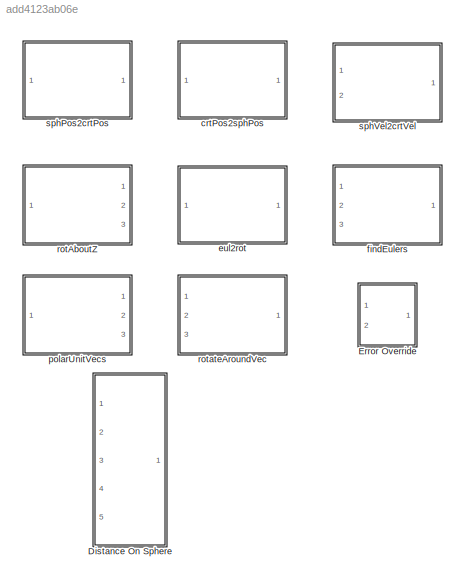
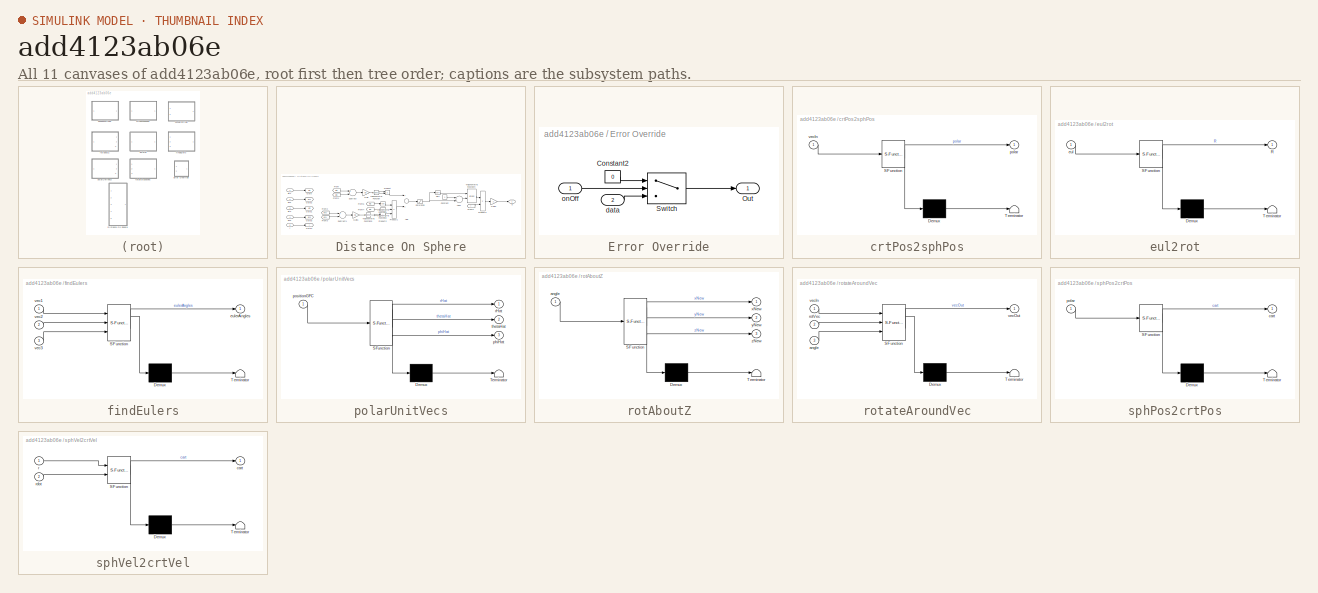
[diagram: thumbnail index - all 11 canvases of the model, root first then tree order]
MODEL slx_add4123ab06e
KIND library
CONFIG AbsTol = auto
CONFIG EnableMultiTasking = off
CONFIG FixedStep = auto
CONFIG MaxStep = auto
CONFIG MinStep = auto
CONFIG RelTol = 1e-3
CONFIG SampleTimeConstraint = Unconstrained
CONFIG Solver = VariableStepAuto
CONFIG SolverName = VariableStepAuto
CONFIG StartTime = 0.0
CONFIG StopTime = 10.0
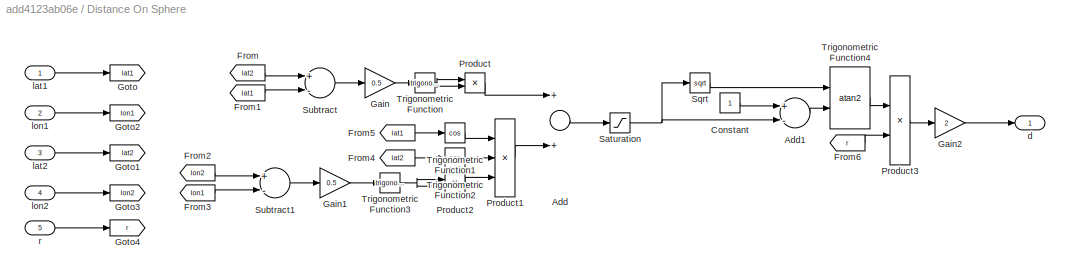
BLOCK [SubSystem] Distance On Sphere
  Ports = [5, 1]
  RequestExecContextInheritance = off
  Variant = off
BLOCK [Sum] Distance On Sphere/Add
  InputSameDT = off
  OutDataTypeStr = Inherit: Inherit via internal rule
  Ports = [2, 1]
  SaturateOnIntegerOverflow = off
BLOCK [Sum] Distance On Sphere/Add1
  InputSameDT = off
  Inputs = +-
  OutDataTypeStr = Inherit: Inherit via internal rule
  Ports = [2, 1]
  SaturateOnIntegerOverflow = off
BLOCK [Constant] Distance On Sphere/Constant
BLOCK [From] Distance On Sphere/From
  GotoTag = lat2
BLOCK [From] Distance On Sphere/From1
  GotoTag = lat1
BLOCK [From] Distance On Sphere/From2
  GotoTag = lon2
BLOCK [From] Distance On Sphere/From3
  GotoTag = lon1
BLOCK [From] Distance On Sphere/From4
  GotoTag = lat2
BLOCK [From] Distance On Sphere/From5
  GotoTag = lat1
BLOCK [From] Distance On Sphere/From6
  GotoTag = r
BLOCK [Gain] Distance On Sphere/Gain
  Gain = 0.5
  OutDataTypeStr = Inherit: Inherit via internal rule
  ParamDataTypeStr = Inherit: Inherit via internal rule
  SaturateOnIntegerOverflow = off
BLOCK [Gain] Distance On Sphere/Gain1
  Gain = 0.5
  OutDataTypeStr = Inherit: Inherit via internal rule
  ParamDataTypeStr = Inherit: Inherit via internal rule
  SaturateOnIntegerOverflow = off
BLOCK [Gain] Distance On Sphere/Gain2
  Gain = 2
  OutDataTypeStr = Inherit: Inherit via internal rule
  ParamDataTypeStr = Inherit: Inherit via internal rule
  SaturateOnIntegerOverflow = off
BLOCK [Goto] Distance On Sphere/Goto
  GotoTag = lat1
BLOCK [Goto] Distance On Sphere/Goto1
  GotoTag = lat2
BLOCK [Goto] Distance On Sphere/Goto2
  GotoTag = lon1
BLOCK [Goto] Distance On Sphere/Goto3
  GotoTag = lon2
BLOCK [Goto] Distance On Sphere/Goto4
  GotoTag = r
BLOCK [Product] Distance On Sphere/Product
  InputSameDT = off
  OutDataTypeStr = Inherit: Inherit via internal rule
  Ports = [2, 1]
  RndMeth = Floor
  SaturateOnIntegerOverflow = off
BLOCK [Product] Distance On Sphere/Product1
  InputSameDT = off
  Inputs = 3
  OutDataTypeStr = Inherit: Inherit via internal rule
  Ports = [3, 1]
  RndMeth = Floor
  SaturateOnIntegerOverflow = off
BLOCK [Product] Distance On Sphere/Product2
  InputSameDT = off
  OutDataTypeStr = Inherit: Inherit via internal rule
  Ports = [2, 1]
  RndMeth = Floor
  SaturateOnIntegerOverflow = off
BLOCK [Product] Distance On Sphere/Product3
  InputSameDT = off
  OutDataTypeStr = Inherit: Inherit via internal rule
  Ports = [2, 1]
  RndMeth = Floor
  SaturateOnIntegerOverflow = off
BLOCK [Saturate] Distance On Sphere/Saturation
  InputPortMap = u0
  LowerLimit = 0
  Ports = [1, 1]
  UpperLimit = 1
BLOCK [Sqrt] Distance On Sphere/Sqrt
BLOCK [Sum] Distance On Sphere/Subtract
  InputSameDT = off
  Inputs = +-
  OutDataTypeStr = Inherit: Inherit via internal rule
  Ports = [2, 1]
  SaturateOnIntegerOverflow = off
BLOCK [Sum] Distance On Sphere/Subtract1
  InputSameDT = off
  Inputs = +-
  OutDataTypeStr = Inherit: Inherit via internal rule
  Ports = [2, 1]
  SaturateOnIntegerOverflow = off
BLOCK [Trigonometry] Distance On Sphere/Trigonometric Function
  Ports = [1, 1]
BLOCK [Trigonometry] Distance On Sphere/Trigonometric Function1
  Operator = cos
  Ports = [1, 1]
BLOCK [Trigonometry] Distance On Sphere/Trigonometric Function2
  Operator = cos
  Ports = [1, 1]
BLOCK [Trigonometry] Distance On Sphere/Trigonometric Function3
  Ports = [1, 1]
BLOCK [Trigonometry] Distance On Sphere/Trigonometric Function4
  Operator = atan2
  Ports = [2, 1]
BLOCK [Outport] Distance On Sphere/d
  IconDisplay = Port number
BLOCK [Inport] Distance On Sphere/lat1
  IconDisplay = Port number
BLOCK [Inport] Distance On Sphere/lat2
  IconDisplay = Port number
  Port = 3
BLOCK [Inport] Distance On Sphere/lon1
  IconDisplay = Port number
  Port = 2
BLOCK [Inport] Distance On Sphere/lon2
  IconDisplay = Port number
  Port = 4
BLOCK [Inport] Distance On Sphere/r
  IconDisplay = Port number
  Port = 5
BLOCK [SubSystem] Error Override
  Ports = [2, 1]
  RequestExecContextInheritance = off
  Variant = off
BLOCK [Constant] Error Override/Constant2
  Value = 0
BLOCK [Outport] Error Override/Out
  IconDisplay = Port number
BLOCK [Switch] Error Override/Switch
  Criteria = u2 > Threshold
  InputSameDT = off
  SaturateOnIntegerOverflow = off
BLOCK [Inport] Error Override/data
  IconDisplay = Port number
  Port = 2
BLOCK [Inport] Error Override/onOff
  IconDisplay = Port number
BLOCK [SubSystem] crtPos2sphPos
  ErrorFcn = Stateflow.Translate.translate
  PermitHierarchicalResolution = ExplicitOnly
  Ports = [1, 1]
  RequestExecContextInheritance = off
  SFBlockType = MATLAB Function
  TreatAsAtomicUnit = on
  Variant = off
BLOCK [Demux] crtPos2sphPos/ Demux 
  Outputs = 1
  Ports = [1, 1]
BLOCK [S-Function] crtPos2sphPos/ SFunction 
  EnableBusSupport = off
  FunctionName = sf_sfun
  PortCounts = [1 2]
  Ports = [1, 2]
  SFcnIsStateOwnerBlock = off
  SFunctionDeploymentMode = off
  Tag = Stateflow S-Function lowLevel 4
BLOCK [Terminator] crtPos2sphPos/ Terminator 
BLOCK [Outport] crtPos2sphPos/polar
  IconDisplay = Port number
BLOCK [Inport] crtPos2sphPos/vecIn
  IconDisplay = Port number
BLOCK [SubSystem] eul2rot
  ErrorFcn = Stateflow.Translate.translate
  PermitHierarchicalResolution = ExplicitOnly
  Ports = [1, 1]
  RequestExecContextInheritance = off
  SFBlockType = MATLAB Function
  TreatAsAtomicUnit = on
  Variant = off
BLOCK [Demux] eul2rot/ Demux 
  Outputs = 1
  Ports = [1, 1]
BLOCK [S-Function] eul2rot/ SFunction 
  EnableBusSupport = off
  FunctionName = sf_sfun
  PortCounts = [1 2]
  Ports = [1, 2]
  SFcnIsStateOwnerBlock = off
  SFunctionDeploymentMode = off
  Tag = Stateflow S-Function lowLevel 2
BLOCK [Terminator] eul2rot/ Terminator 
BLOCK [Outport] eul2rot/R
  IconDisplay = Port number
BLOCK [Inport] eul2rot/eul
  IconDisplay = Port number
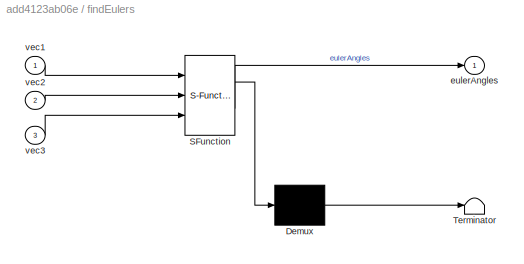
BLOCK [SubSystem] findEulers
  ErrorFcn = Stateflow.Translate.translate
  PermitHierarchicalResolution = ExplicitOnly
  Ports = [3, 1]
  RequestExecContextInheritance = off
  SFBlockType = MATLAB Function
  TreatAsAtomicUnit = on
  Variant = off
BLOCK [Demux] findEulers/ Demux 
  Outputs = 1
  Ports = [1, 1]
BLOCK [S-Function] findEulers/ SFunction 
  EnableBusSupport = off
  FunctionName = sf_sfun
  PortCounts = [3 2]
  Ports = [3, 2]
  SFcnIsStateOwnerBlock = off
  SFunctionDeploymentMode = off
  Tag = Stateflow S-Function lowLevel 9
BLOCK [Terminator] findEulers/ Terminator 
BLOCK [Outport] findEulers/eulerAngles
  IconDisplay = Port number
BLOCK [Inport] findEulers/vec1
  IconDisplay = Port number
BLOCK [Inport] findEulers/vec2
  IconDisplay = Port number
  Port = 2
BLOCK [Inport] findEulers/vec3
  IconDisplay = Port number
  Port = 3
BLOCK [SubSystem] polarUnitVecs
  ErrorFcn = Stateflow.Translate.translate
  PermitHierarchicalResolution = ExplicitOnly
  Ports = [1, 3]
  RequestExecContextInheritance = off
  SFBlockType = MATLAB Function
  TreatAsAtomicUnit = on
  Variant = off
BLOCK [Demux] polarUnitVecs/ Demux 
  Outputs = 1
  Ports = [1, 1]
BLOCK [S-Function] polarUnitVecs/ SFunction 
  EnableBusSupport = off
  FunctionName = sf_sfun
  PortCounts = [1 4]
  Ports = [1, 4]
  SFcnIsStateOwnerBlock = off
  SFunctionDeploymentMode = off
  Tag = Stateflow S-Function lowLevel 7
BLOCK [Terminator] polarUnitVecs/ Terminator 
BLOCK [Outport] polarUnitVecs/phiHat
  IconDisplay = Port number
  Port = 3
BLOCK [Inport] polarUnitVecs/positionGFC
  IconDisplay = Port number
BLOCK [Outport] polarUnitVecs/rHat
  IconDisplay = Port number
BLOCK [Outport] polarUnitVecs/thetaHat
  IconDisplay = Port number
  Port = 2
BLOCK [SubSystem] rotAboutZ
  ErrorFcn = Stateflow.Translate.translate
  PermitHierarchicalResolution = ExplicitOnly
  Ports = [1, 3]
  RequestExecContextInheritance = off
  SFBlockType = MATLAB Function
  TreatAsAtomicUnit = on
  Variant = off
BLOCK [Demux] rotAboutZ/ Demux 
  Outputs = 1
  Ports = [1, 1]
BLOCK [S-Function] rotAboutZ/ SFunction 
  EnableBusSupport = off
  FunctionName = sf_sfun
  PortCounts = [1 4]
  Ports = [1, 4]
  SFcnIsStateOwnerBlock = off
  SFunctionDeploymentMode = off
  Tag = Stateflow S-Function lowLevel 8
BLOCK [Terminator] rotAboutZ/ Terminator 
BLOCK [Inport] rotAboutZ/angle
  IconDisplay = Port number
BLOCK [Outport] rotAboutZ/xNew
  IconDisplay = Port number
BLOCK [Outport] rotAboutZ/yNew
  IconDisplay = Port number
  Port = 2
BLOCK [Outport] rotAboutZ/zNew
  IconDisplay = Port number
  Port = 3
BLOCK [SubSystem] rotateAroundVec
  ErrorFcn = Stateflow.Translate.translate
  PermitHierarchicalResolution = ExplicitOnly
  Ports = [3, 1]
  RequestExecContextInheritance = off
  SFBlockType = MATLAB Function
  TreatAsAtomicUnit = on
  Variant = off
BLOCK [Demux] rotateAroundVec/ Demux 
  Outputs = 1
  Ports = [1, 1]
BLOCK [S-Function] rotateAroundVec/ SFunction 
  EnableBusSupport = off
  FunctionName = sf_sfun
  PortCounts = [3 2]
  Ports = [3, 2]
  SFcnIsStateOwnerBlock = off
  SFunctionDeploymentMode = off
  Tag = Stateflow S-Function lowLevel 15
BLOCK [Terminator] rotateAroundVec/ Terminator 
BLOCK [Inport] rotateAroundVec/angle
  IconDisplay = Port number
  Port = 3
BLOCK [Inport] rotateAroundVec/rotVec
  IconDisplay = Port number
  Port = 2
BLOCK [Inport] rotateAroundVec/vecIn
  IconDisplay = Port number
BLOCK [Outport] rotateAroundVec/vecOut
  IconDisplay = Port number
BLOCK [SubSystem] sphPos2crtPos
  ErrorFcn = Stateflow.Translate.translate
  PermitHierarchicalResolution = ExplicitOnly
  Ports = [1, 1]
  RequestExecContextInheritance = off
  SFBlockType = MATLAB Function
  TreatAsAtomicUnit = on
  Variant = off
BLOCK [Demux] sphPos2crtPos/ Demux 
  Outputs = 1
  Ports = [1, 1]
BLOCK [S-Function] sphPos2crtPos/ SFunction 
  EnableBusSupport = off
  FunctionName = sf_sfun
  PortCounts = [1 2]
  Ports = [1, 2]
  SFcnIsStateOwnerBlock = off
  SFunctionDeploymentMode = off
  Tag = Stateflow S-Function lowLevel 5
BLOCK [Terminator] sphPos2crtPos/ Terminator 
BLOCK [Outport] sphPos2crtPos/cart
  IconDisplay = Port number
BLOCK [Inport] sphPos2crtPos/polar
  IconDisplay = Port number
BLOCK [SubSystem] sphVel2crtVel
  ErrorFcn = Stateflow.Translate.translate
  PermitHierarchicalResolution = ExplicitOnly
  Ports = [2, 1]
  RequestExecContextInheritance = off
  SFBlockType = MATLAB Function
  TreatAsAtomicUnit = on
  Variant = off
BLOCK [Demux] sphVel2crtVel/ Demux 
  Outputs = 1
  Ports = [1, 1]
BLOCK [S-Function] sphVel2crtVel/ SFunction 
  EnableBusSupport = off
  FunctionName = sf_sfun
  PortCounts = [2 2]
  Ports = [2, 2]
  SFcnIsStateOwnerBlock = off
  SFunctionDeploymentMode = off
  Tag = Stateflow S-Function lowLevel 1
BLOCK [Terminator] sphVel2crtVel/ Terminator 
BLOCK [Outport] sphVel2crtVel/cart
  IconDisplay = Port number
BLOCK [Inport] sphVel2crtVel/r
  IconDisplay = Port number
BLOCK [Inport] sphVel2crtVel/rdot
  IconDisplay = Port number
  Port = 2
LINE Distance On Sphere/Add1:1 -> Distance On Sphere/Trigonometric Function4:2
LINE Distance On Sphere/Add:1 -> Distance On Sphere/Saturation:1
LINE Distance On Sphere/Constant:1 -> Distance On Sphere/Add1:1
LINE Distance On Sphere/From1:1 -> Distance On Sphere/Subtract:2
LINE Distance On Sphere/From2:1 -> Distance On Sphere/Subtract1:1
LINE Distance On Sphere/From3:1 -> Distance On Sphere/Subtract1:2
LINE Distance On Sphere/From4:1 -> Distance On Sphere/Trigonometric Function2:1
LINE Distance On Sphere/From5:1 -> Distance On Sphere/Trigonometric Function1:1
LINE Distance On Sphere/From6:1 -> Distance On Sphere/Product3:2
LINE Distance On Sphere/From:1 -> Distance On Sphere/Subtract:1
LINE Distance On Sphere/Gain1:1 -> Distance On Sphere/Trigonometric Function3:1
LINE Distance On Sphere/Gain2:1 -> Distance On Sphere/d:1
LINE Distance On Sphere/Gain:1 -> Distance On Sphere/Trigonometric Function:1
LINE Distance On Sphere/Product1:1 -> Distance On Sphere/Add:2
LINE Distance On Sphere/Product2:1 -> Distance On Sphere/Product1:3
LINE Distance On Sphere/Product3:1 -> Distance On Sphere/Gain2:1
LINE Distance On Sphere/Product:1 -> Distance On Sphere/Add:1
NET Distance On Sphere/Saturation:1 -> Distance On Sphere/Add1:2, Distance On Sphere/Sqrt:1
LINE Distance On Sphere/Sqrt:1 -> Distance On Sphere/Trigonometric Function4:1
LINE Distance On Sphere/Subtract1:1 -> Distance On Sphere/Gain1:1
LINE Distance On Sphere/Subtract:1 -> Distance On Sphere/Gain:1
LINE Distance On Sphere/Trigonometric Function1:1 -> Distance On Sphere/Product1:1
LINE Distance On Sphere/Trigonometric Function2:1 -> Distance On Sphere/Product1:2
NET Distance On Sphere/Trigonometric Function3:1 -> Distance On Sphere/Product2:1, Distance On Sphere/Product2:2
LINE Distance On Sphere/Trigonometric Function4:1 -> Distance On Sphere/Product3:1
NET Distance On Sphere/Trigonometric Function:1 -> Distance On Sphere/Product:1, Distance On Sphere/Product:2
LINE Distance On Sphere/lat1:1 -> Distance On Sphere/Goto:1
LINE Distance On Sphere/lat2:1 -> Distance On Sphere/Goto1:1
LINE Distance On Sphere/lon1:1 -> Distance On Sphere/Goto2:1
LINE Distance On Sphere/lon2:1 -> Distance On Sphere/Goto3:1
LINE Distance On Sphere/r:1 -> Distance On Sphere/Goto4:1
LINE Error Override/Constant2:1 -> Error Override/Switch:1
LINE Error Override/Switch:1 -> Error Override/Out:1
LINE Error Override/data:1 -> Error Override/Switch:3
LINE Error Override/onOff:1 -> Error Override/Switch:2
note: NET lines group one-source signal fan-out (src -> all destinations, sorted); 1:1 wires keep LINE
CHART sphVel2crtVel states=1 transitions=1
  STATE_LABEL 'eML_blk_kernel()'
  STATE_LABEL 'SCRIPT:\nfunction cart = sphVel2crtVel(r,rdot)\n% convert a ground fixed polar vector to ground fixed cartesian\n% This follows the wolfram convention outlined here:\n% http://mathworld.wolfram.com/SphericalCoordinates.html\ncart = [0;0;0];\ncart(1) =       cos(r(2))*sin(r(3))*rdot(1)...\n          -r(1)*sin(r(2))*sin(r(3))*rdot(2)...\n          +r(1)*cos(r(2))*cos(r(3))*rdot(3);\n\ncart(2) =       sin(r(2)...<+172ch>'
CHART eul2rot states=1 transitions=1
  STATE_LABEL 'eML_blk_kernel()'
  STATE_LABEL 'SCRIPT:\nfunction R = eul2rot(eul)\n% Convert Euler angles to rotation Matrix\nct = cos(eul);\nst = sin(eul);\n\n%     The rotation matrix R can be constructed as follows by\n%     ct = [cz cy cx] and st = [sy sy sx]\n%\n%     R = [  cy*cz   sy*sx*cz-sz*cx    sy*cx*cz+sz*sx\n%            cy*sz   sy*sx*sz+cz*cx    sy*cx*sz-cz*sx\n%              -sy            cy*sx             cy*cx]\n%       = Rz(tz) * Ry(ty)...<+335ch>'
CHART crtPos2sphPos states=1 transitions=1
  STATE_LABEL 'eML_blk_kernel()'
  STATE_LABEL 'SCRIPT:\nfunction polar = cart2sphere(vecIn)\n% convert a cartesian vector to a spherical vector\n% this follows the conventioned outlined here: \n% http://mathworld.wolfram.com/SphericalCoordinates.html\npolar = [0;0;0];\n% polar(1) = sqrt(sum(cart.^2));\n% polar(2) = atan2(cart(2),cart(1));\n% polar(3) = (pi/2)-acos(cart(3)/polar(1));\npolar(1) = sqrt(sum(vecIn.^2));         %r\npolar(2) = atan2(vecIn(2),...<+77ch>'
CHART sphPos2crtPos states=1 transitions=1
  STATE_LABEL 'eML_blk_kernel()'
  STATE_LABEL 'SCRIPT:\nfunction cart = sphere2cart(polar)\n% convert a ground fixed polar vector to ground fixed cartesian\n% This follows the wolfram convention outlined here:\n% http://mathworld.wolfram.com/SphericalCoordinates.html\ncart = [0;0;0];\ncart(1) = polar(1)*cos(polar(2))*sin(polar(3));\ncart(2) = polar(1)*sin(polar(2))*sin(polar(3));\ncart(3) = polar(1)*cos(polar(3));\nend\n'
CHART polarUnitVecs states=1 transitions=1
  STATE_LABEL 'eML_blk_kernel()'
  STATE_LABEL 'SCRIPT:\nfunction [rHat,thetaHat,phiHat] = polarUnitVecs(positionGFC)\n% Find ground-frame representation of spherical unit vectors for a given\n% cartesian vector.  Each unit vector output is represented in ground frame\n% cartesian components This follows the wolfram convention outlined here:\n% http://mathworld.wolfram.com/SphericalCoordinates.html\nr       = sqrt(sum(positionGFC.^2));\ntheta   = atan...<+289ch>'
CHART rotAboutZ states=1 transitions=1
  STATE_LABEL 'eML_blk_kernel()'
  STATE_LABEL "SCRIPT:\nfunction [xNew,yNew,zNew] = rotAboutZ(angle)\n% Function takes the body fixed x, y, anz axes and rotates them about the z\n% axis by the amount specified in angle.\nxHat = [1 0 0]';\nyHat = [0 1 0]';\nzHat = [0 0 1]';\nR = [cos(angle),-sin(angle) 0;sin(angle) cos(angle) 0;0 0 1];\nxNew = R*xHat;\nyNew = R*yHat;\nzNew = R*zHat;\n\nend\n"
CHART findEulers states=1 transitions=1
  STATE_LABEL 'eML_blk_kernel()'
  STATE_LABEL "SCRIPT:\nfunction eulerAngles = findEulers(vec1,vec2,vec3)\n% Function takes the sperical thetaHat and phiHat and rotates about the\n% rHat vector by the amount specified in angle.  Returns 3 3-element column\n% vectors representing the new vectors in spherical coordinates.\nrHat = [1 0 0]';\nthetaHat = [0 1 0]';\nphiHat = [0 0 1]';\nrot = [cos(angle) -sin(angle) 0; sin(angle) cos(angle) 0;0 0 1];\nrNew = ...<+60ch>"
CHART rotateAroundVec states=1 transitions=1
  STATE_LABEL 'eML_blk_kernel()'
  STATE_LABEL "SCRIPT:\nfunction vecOut = rotateAroundVec(vecIn,rotVec,angle)\n% Function rotates a vector around an arbitrary vector.\n% vecIn = vector to be rotated\n% rotVec = vector that defines the axis of rotation\n% angle = the angle of rotation\n% vecOut = angle after rotation\n% This follows the procedure outlined here:\n% http://ksuweb.kennesaw.edu/~plaval//math4490/rotgen.pdf\n% position=vecIn';\n% T=[1 0 0 -po...<+980ch>"
